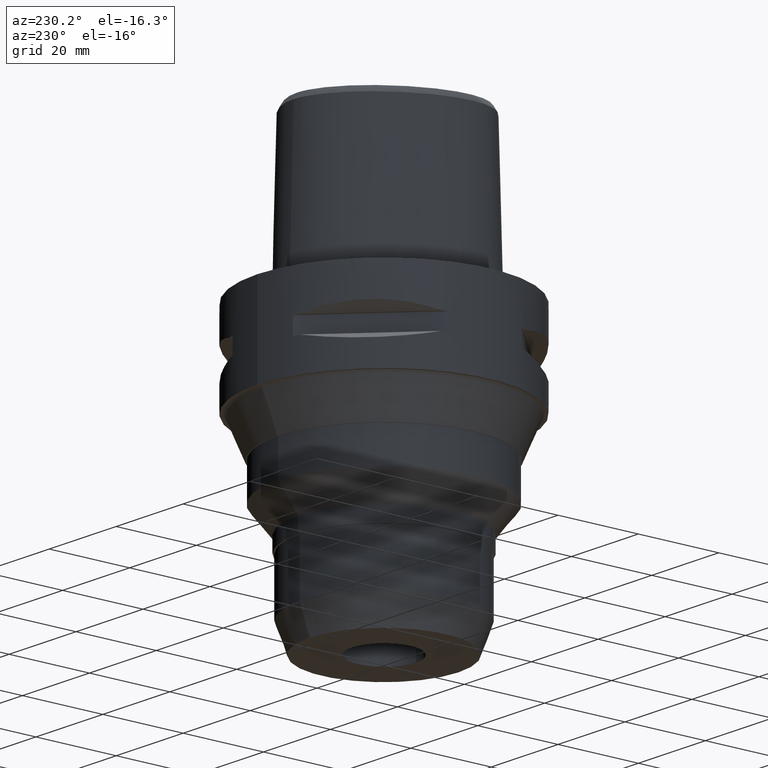
[diagram: clean part render]
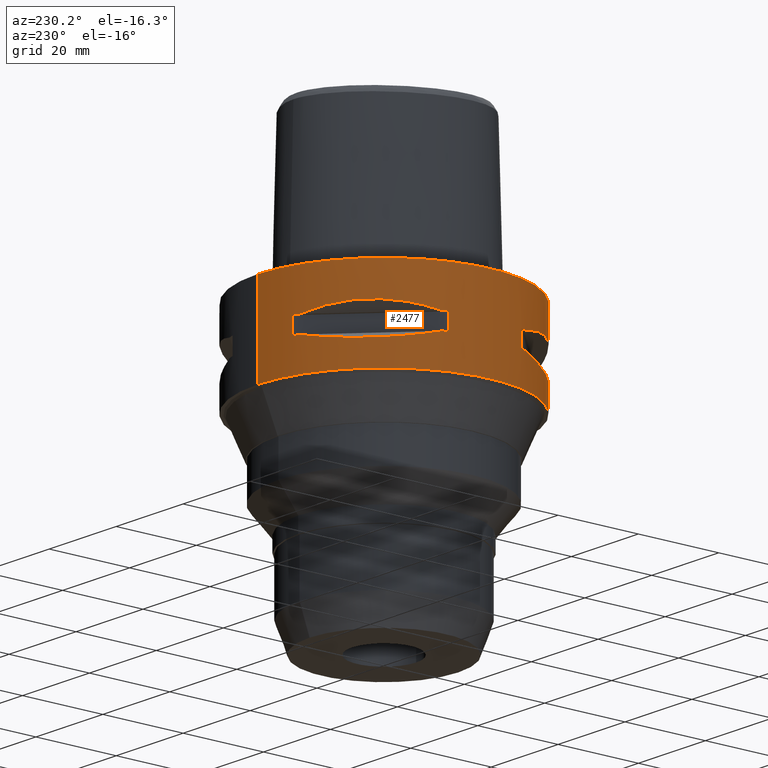
[diagram: same view with one face highlighted and labeled with its STEP entity id]
A machine part, auxiliary view. The second image highlights one B-rep face of the part: STEP entity #2477.
In plain terms, the highlighted cylindrical surface (partial cylindrical patch) has radius 31.5 mm, axis along (0, 0, -1).
Its self-contained STEP definition (entity closure, byte-faithful):
#297=CARTESIAN_POINT('',(0.E0,1.267509437118E-14,0.E0));
#298=DIRECTION('',(0.E0,0.E0,-1.E0));
#299=DIRECTION('',(0.E0,-1.E0,0.E0));
#300=AXIS2_PLACEMENT_3D('',#297,#298,#299);
#401=DIRECTION('',(0.E0,0.E0,-1.E0));
#402=VECTOR('',#401,2.2E1);
#403=CARTESIAN_POINT('',(0.E0,-3.15E1,0.E0));
#404=LINE('',#403,#402);
#408=DIRECTION('',(0.E0,0.E0,-1.E0));
#409=VECTOR('',#408,4.1E0);
#410=CARTESIAN_POINT('',(-8.981198972017E0,3.019251670572E1,-9.95E0));
#411=LINE('',#410,#409);
#415=CARTESIAN_POINT('',(-1.044775724750E1,2.971690375018E1,-1.405E1));
#416=CARTESIAN_POINT('',(-1.282388988809E1,2.888151197365E1,-1.467900482380E1));
#417=CARTESIAN_POINT('',(-1.711282138769E1,2.674739463903E1,-1.555870402293E1));
#418=CARTESIAN_POINT('',(-2.244574140438E1,2.244574140438E1,-1.597971692371E1));
#419=CARTESIAN_POINT('',(-2.674739463903E1,1.711282138769E1,-1.555870402293E1));
#420=CARTESIAN_POINT('',(-2.888151197365E1,1.282388988809E1,-1.467900482380E1));
#421=CARTESIAN_POINT('',(-2.971690375018E1,1.044775724750E1,-1.405E1));
#426=DIRECTION('',(0.E0,0.E0,1.E0));
#427=VECTOR('',#426,4.1E0);
#428=CARTESIAN_POINT('',(-3.019251670572E1,8.981198972017E0,-1.405E1));
#429=LINE('',#428,#427);
#433=DIRECTION('',(0.E0,0.E0,-1.E0));
#434=VECTOR('',#433,4.1E0);
#435=CARTESIAN_POINT('',(-3.019251670572E1,-8.981198972017E0,-9.95E0));
#436=LINE('',#435,#434);
#440=CARTESIAN_POINT('',(-2.971690375018E1,-1.044775724750E1,-1.405E1));
#441=CARTESIAN_POINT('',(-2.888151197365E1,-1.282388988809E1,
-1.467900482380E1));
#442=CARTESIAN_POINT('',(-2.674739463903E1,-1.711282138769E1,
-1.555870402293E1));
#443=CARTESIAN_POINT('',(-2.244574140438E1,-2.244574140438E1,
-1.597971692371E1));
#444=CARTESIAN_POINT('',(-1.711282138769E1,-2.674739463903E1,
-1.555870402293E1));
#445=CARTESIAN_POINT('',(-1.282388988809E1,-2.888151197365E1,
-1.467900482380E1));
#446=CARTESIAN_POINT('',(-1.044775724750E1,-2.971690375018E1,-1.405E1));
#451=DIRECTION('',(0.E0,0.E0,1.E0));
#452=VECTOR('',#451,4.1E0);
#453=CARTESIAN_POINT('',(-8.981198972017E0,-3.019251670572E1,-1.405E1));
#454=LINE('',#453,#452);
#458=DIRECTION('',(0.E0,0.E0,-1.E0));
#459=VECTOR('',#458,2.2E1);
#460=CARTESIAN_POINT('',(0.E0,3.15E1,0.E0));
#461=LINE('',#460,#459);
#523=CARTESIAN_POINT('',(0.E0,1.267509437118E-14,-2.2E1));
#524=DIRECTION('',(0.E0,0.E0,1.E0));
#525=DIRECTION('',(0.E0,1.E0,0.E0));
#526=AXIS2_PLACEMENT_3D('',#523,#524,#525);
#1416=CARTESIAN_POINT('',(-1.044775724750E1,2.971690375018E1,
-9.950000000002E0));
#1417=CARTESIAN_POINT('',(-1.282388988809E1,2.888151197365E1,
-9.320995176201E0));
#1418=CARTESIAN_POINT('',(-1.711282138769E1,2.674739463903E1,
-8.441295977077E0));
#1419=CARTESIAN_POINT('',(-2.244574140438E1,2.244574140438E1,
-8.020283076297E0));
#1420=CARTESIAN_POINT('',(-2.674739463903E1,1.711282138769E1,
-8.441295977077E0));
#1421=CARTESIAN_POINT('',(-2.888151197365E1,1.282388988809E1,
-9.320995176201E0));
#1422=CARTESIAN_POINT('',(-2.971690375018E1,1.044775724750E1,
-9.950000000002E0));
#1434=CARTESIAN_POINT('',(0.E0,1.267509437118E-14,-9.95E0));
#1435=DIRECTION('',(0.E0,0.E0,1.E0));
#1436=DIRECTION('',(-9.433937698469E-1,3.316748332541E-1,0.E0));
#1437=AXIS2_PLACEMENT_3D('',#1434,#1435,#1436);
#1449=CARTESIAN_POINT('',(0.E0,1.267509437118E-14,-9.95E0));
#1450=DIRECTION('',(0.E0,0.E0,1.E0));
#1451=DIRECTION('',(-2.851174276832E-1,9.584925938323E-1,0.E0));
#1452=AXIS2_PLACEMENT_3D('',#1449,#1450,#1451);
#1464=CARTESIAN_POINT('',(0.E0,1.267509437118E-14,-1.405E1));
#1465=DIRECTION('',(0.E0,0.E0,-1.E0));
#1466=DIRECTION('',(-9.584925938323E-1,2.851174276832E-1,0.E0));
#1467=AXIS2_PLACEMENT_3D('',#1464,#1465,#1466);
#1479=CARTESIAN_POINT('',(0.E0,1.267509437118E-14,-1.405E1));
#1480=DIRECTION('',(0.E0,0.E0,-1.E0));
#1481=DIRECTION('',(-3.316748332541E-1,9.433937698469E-1,0.E0));
#1482=AXIS2_PLACEMENT_3D('',#1479,#1480,#1481);
#1487=CARTESIAN_POINT('',(-2.971690375018E1,-1.044775724750E1,
-9.950000000002E0));
#1488=CARTESIAN_POINT('',(-2.888151197365E1,-1.282388988809E1,
-9.320995176201E0));
#1489=CARTESIAN_POINT('',(-2.674739463903E1,-1.711282138769E1,
-8.441295977077E0));
#1490=CARTESIAN_POINT('',(-2.244574140438E1,-2.244574140438E1,
-8.020283076297E0));
#1491=CARTESIAN_POINT('',(-1.711282138769E1,-2.674739463903E1,
-8.441295977077E0));
#1492=CARTESIAN_POINT('',(-1.282388988809E1,-2.888151197365E1,
-9.320995176201E0));
#1493=CARTESIAN_POINT('',(-1.044775724750E1,-2.971690375018E1,
-9.950000000002E0));
#1498=CARTESIAN_POINT('',(0.E0,1.267509437118E-14,-9.95E0));
#1499=DIRECTION('',(0.E0,0.E0,1.E0));
#1500=DIRECTION('',(-3.316748332541E-1,-9.433937698469E-1,0.E0));
#1501=AXIS2_PLACEMENT_3D('',#1498,#1499,#1500);
#1506=CARTESIAN_POINT('',(0.E0,1.267509437118E-14,-9.95E0));
#1507=DIRECTION('',(0.E0,0.E0,1.E0));
#1508=DIRECTION('',(-9.584925938323E-1,-2.851174276832E-1,0.E0));
#1509=AXIS2_PLACEMENT_3D('',#1506,#1507,#1508);
#1528=CARTESIAN_POINT('',(0.E0,1.267509437118E-14,-1.405E1));
#1529=DIRECTION('',(0.E0,0.E0,-1.E0));
#1530=DIRECTION('',(-2.851174276832E-1,-9.584925938323E-1,0.E0));
#1531=AXIS2_PLACEMENT_3D('',#1528,#1529,#1530);
#1536=CARTESIAN_POINT('',(0.E0,1.267509437118E-14,-1.405E1));
#1537=DIRECTION('',(0.E0,0.E0,-1.E0));
#1538=DIRECTION('',(-9.433937698469E-1,-3.316748332541E-1,0.E0));
#1539=AXIS2_PLACEMENT_3D('',#1536,#1537,#1538);
#1584=CARTESIAN_POINT('',(0.E0,-3.15E1,0.E0));
#1585=CARTESIAN_POINT('',(0.E0,3.15E1,0.E0));
#1586=VERTEX_POINT('',#1584);
#1587=VERTEX_POINT('',#1585);
#1588=CARTESIAN_POINT('',(0.E0,3.15E1,-2.2E1));
#1589=VERTEX_POINT('',#1588);
#1590=CARTESIAN_POINT('',(0.E0,-3.15E1,-2.2E1));
#1591=VERTEX_POINT('',#1590);
#1592=VERTEX_POINT('',#1416);
#1593=VERTEX_POINT('',#1422);
#1594=CARTESIAN_POINT('',(-8.981198972020E0,3.019251670572E1,-9.95E0));
#1595=VERTEX_POINT('',#1594);
#1596=CARTESIAN_POINT('',(-8.981198972017E0,3.019251670572E1,-1.405E1));
#1597=VERTEX_POINT('',#1596);
#1598=CARTESIAN_POINT('',(-1.044775724750E1,2.971690375018E1,-1.405E1));
#1599=VERTEX_POINT('',#1598);
#1600=VERTEX_POINT('',#421);
#1601=CARTESIAN_POINT('',(-3.019251670572E1,8.981198972020E0,-1.405E1));
#1602=VERTEX_POINT('',#1601);
#1603=CARTESIAN_POINT('',(-3.019251670572E1,8.981198972017E0,-9.95E0));
#1604=VERTEX_POINT('',#1603);
#1605=VERTEX_POINT('',#1487);
#1606=VERTEX_POINT('',#1493);
#1607=CARTESIAN_POINT('',(-3.019251670572E1,-8.981198972020E0,-9.95E0));
#1608=VERTEX_POINT('',#1607);
#1609=CARTESIAN_POINT('',(-3.019251670572E1,-8.981198972017E0,-1.405E1));
#1610=VERTEX_POINT('',#1609);
#1611=CARTESIAN_POINT('',(-2.971690375018E1,-1.044775724750E1,-1.405E1));
#1612=VERTEX_POINT('',#1611);
#1613=VERTEX_POINT('',#446);
#1614=CARTESIAN_POINT('',(-8.981198972020E0,-3.019251670572E1,-1.405E1));
#1615=VERTEX_POINT('',#1614);
#1616=CARTESIAN_POINT('',(-8.981198972017E0,-3.019251670572E1,-9.95E0));
#1617=VERTEX_POINT('',#1616);
#2427=CARTESIAN_POINT('',(0.E0,1.267509437118E-14,3.5E0));
#2428=DIRECTION('',(0.E0,0.E0,-1.E0));
#2429=DIRECTION('',(0.E0,-1.E0,0.E0));
#2430=AXIS2_PLACEMENT_3D('',#2427,#2428,#2429);
#2431=CYLINDRICAL_SURFACE('',#2430,3.15E1);
#2433=ORIENTED_EDGE('',*,*,#2432,.F.);
#2434=ORIENTED_EDGE('',*,*,#2415,.F.);
#2436=ORIENTED_EDGE('',*,*,#2435,.T.);
#2438=ORIENTED_EDGE('',*,*,#2437,.F.);
#2439=EDGE_LOOP('',(#2433,#2434,#2436,#2438));
#2440=FACE_OUTER_BOUND('',#2439,.F.);
#2442=ORIENTED_EDGE('',*,*,#2441,.F.);
#2444=ORIENTED_EDGE('',*,*,#2443,.F.);
#2446=ORIENTED_EDGE('',*,*,#2445,.T.);
#2448=ORIENTED_EDGE('',*,*,#2447,.F.);
#2450=ORIENTED_EDGE('',*,*,#2449,.T.);
#2452=ORIENTED_EDGE('',*,*,#2451,.F.);
#2454=ORIENTED_EDGE('',*,*,#2453,.T.);
#2456=ORIENTED_EDGE('',*,*,#2455,.F.);
#2457=EDGE_LOOP('',(#2442,#2444,#2446,#2448,#2450,#2452,#2454,#2456));
#2458=FACE_BOUND('',#2457,.F.);
#2460=ORIENTED_EDGE('',*,*,#2459,.F.);
#2462=ORIENTED_EDGE('',*,*,#2461,.F.);
#2464=ORIENTED_EDGE('',*,*,#2463,.T.);
#2466=ORIENTED_EDGE('',*,*,#2465,.F.);
#2468=ORIENTED_EDGE('',*,*,#2467,.T.);
#2470=ORIENTED_EDGE('',*,*,#2469,.F.);
#2472=ORIENTED_EDGE('',*,*,#2471,.T.);
#2474=ORIENTED_EDGE('',*,*,#2473,.F.);
#2475=EDGE_LOOP('',(#2460,#2462,#2464,#2466,#2468,#2470,#2472,#2474));
#2476=FACE_BOUND('',#2475,.F.);
#301=CIRCLE('',#300,3.15E1);
#422=B_SPLINE_CURVE_WITH_KNOTS('',3,(#415,#416,#417,#418,#419,#420,#421),
.UNSPECIFIED.,.F.,.F.,(4,1,1,1,4),(0.E0,2.5E-1,5.E-1,7.5E-1,1.E0),
.UNSPECIFIED.);
#447=B_SPLINE_CURVE_WITH_KNOTS('',3,(#440,#441,#442,#443,#444,#445,#446),
.UNSPECIFIED.,.F.,.F.,(4,1,1,1,4),(0.E0,2.5E-1,5.E-1,7.5E-1,1.E0),
.UNSPECIFIED.);
#527=CIRCLE('',#526,3.15E1);
#1423=B_SPLINE_CURVE_WITH_KNOTS('',3,(#1416,#1417,#1418,#1419,#1420,#1421,
#1422),.UNSPECIFIED.,.F.,.F.,(4,1,1,1,4),(0.E0,2.5E-1,5.E-1,7.5E-1,1.E0),
.UNSPECIFIED.);
#1438=CIRCLE('',#1437,3.15E1);
#1453=CIRCLE('',#1452,3.15E1);
#1468=CIRCLE('',#1467,3.15E1);
#1483=CIRCLE('',#1482,3.15E1);
#1494=B_SPLINE_CURVE_WITH_KNOTS('',3,(#1487,#1488,#1489,#1490,#1491,#1492,
#1493),.UNSPECIFIED.,.F.,.F.,(4,1,1,1,4),(0.E0,2.5E-1,5.E-1,7.5E-1,1.E0),
.UNSPECIFIED.);
#1502=CIRCLE('',#1501,3.15E1);
#1510=CIRCLE('',#1509,3.15E1);
#1532=CIRCLE('',#1531,3.15E1);
#1540=CIRCLE('',#1539,3.15E1);
#2415=EDGE_CURVE('',#1586,#1587,#301,.T.);
#2432=EDGE_CURVE('',#1587,#1589,#461,.T.);
#2435=EDGE_CURVE('',#1586,#1591,#404,.T.);
#2437=EDGE_CURVE('',#1589,#1591,#527,.T.);
#2441=EDGE_CURVE('',#1592,#1593,#1423,.T.);
#2443=EDGE_CURVE('',#1595,#1592,#1453,.T.);
#2445=EDGE_CURVE('',#1595,#1597,#411,.T.);
#2447=EDGE_CURVE('',#1599,#1597,#1483,.T.);
#2449=EDGE_CURVE('',#1599,#1600,#422,.T.);
#2451=EDGE_CURVE('',#1602,#1600,#1468,.T.);
#2453=EDGE_CURVE('',#1602,#1604,#429,.T.);
#2455=EDGE_CURVE('',#1593,#1604,#1438,.T.);
#2459=EDGE_CURVE('',#1605,#1606,#1494,.T.);
#2461=EDGE_CURVE('',#1608,#1605,#1510,.T.);
#2463=EDGE_CURVE('',#1608,#1610,#436,.T.);
#2465=EDGE_CURVE('',#1612,#1610,#1540,.T.);
#2467=EDGE_CURVE('',#1612,#1613,#447,.T.);
#2469=EDGE_CURVE('',#1615,#1613,#1532,.T.);
#2471=EDGE_CURVE('',#1615,#1617,#454,.T.);
#2473=EDGE_CURVE('',#1606,#1617,#1502,.T.);
#2477=ADVANCED_FACE('',(#2440,#2458,#2476),#2431,.T.);